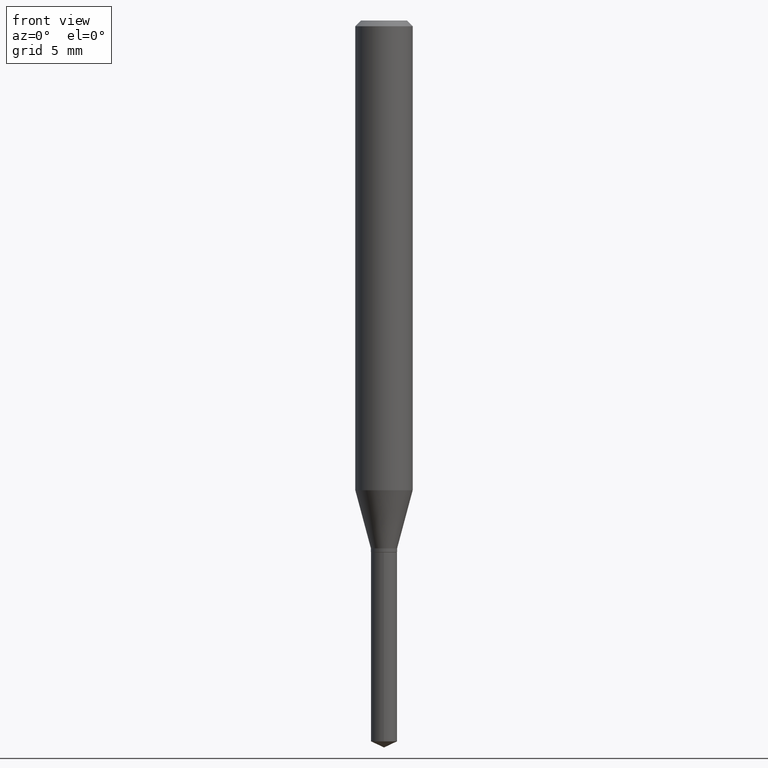
[diagram: clean part render]
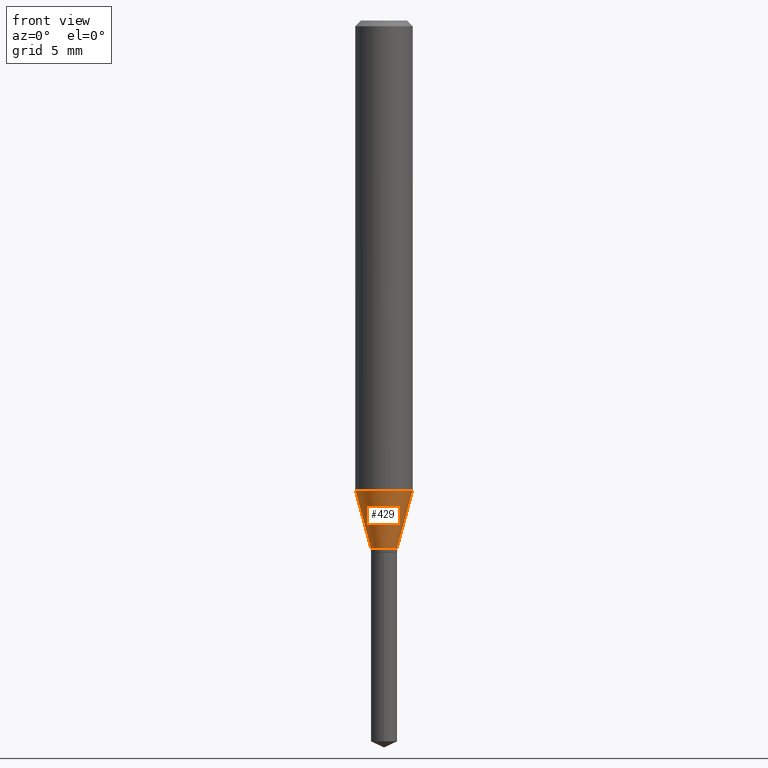
[diagram: same view with one face highlighted and labeled with its STEP entity id]
A machine part, front view. The second image highlights one B-rep face of the part: STEP entity #429.
In plain terms, the highlighted conical surface has half-angle 15 deg.
Its self-contained STEP definition (entity closure, byte-faithful):
#10 = CARTESIAN_POINT ( 'NONE',  ( -0.02695000000000000173, -3.601654059231846417E-15, -1.086399999999999810 ) ) ;
#17 = EDGE_CURVE ( 'NONE', #186, #310, #37, .T. ) ;
#19 = CARTESIAN_POINT ( 'NONE',  ( -0.05905000000000011628, -2.955294458470109520E-15, -0.9666011690770388576 ) ) ;
#37 = CIRCLE ( 'NONE', #421, 0.02695000000000000173 ) ;
#41 = EDGE_LOOP ( 'NONE', ( #141, #459, #177, #231 ) ) ;
#53 = DIRECTION ( 'NONE',  ( -2.445468806185136597E-29, 3.491481338843145583E-15, 1.000000000000000000 ) ) ;
#63 = AXIS2_PLACEMENT_3D ( 'NONE', #411, #331, #481 ) ;
#81 = VERTEX_POINT ( 'NONE', #19 ) ;
#89 = VECTOR ( 'NONE', #184, 39.37007874015747433 ) ;
#92 = LINE ( 'NONE', #10, #89 ) ;
#131 = DIRECTION ( 'NONE',  ( -2.445468806185136597E-29, 3.491481338843145583E-15, 1.000000000000000000 ) ) ;
#134 = EDGE_CURVE ( 'NONE', #310, #241, #391, .T. ) ;
#141 = ORIENTED_EDGE ( 'NONE', *, *, #324, .F. ) ;
#168 = VECTOR ( 'NONE', #207, 39.37007874015747433 ) ;
#177 = ORIENTED_EDGE ( 'NONE', *, *, #134, .T. ) ;
#184 = DIRECTION ( 'NONE',  ( -0.2588190451025213501, 5.211531920934551042E-15, 0.9659258262890682012 ) ) ;
#186 = VERTEX_POINT ( 'NONE', #261 ) ;
#207 = DIRECTION ( 'NONE',  ( 0.2588190451025213501, 1.565188264969621968E-15, 0.9659258262890682012 ) ) ;
#210 = DIRECTION ( 'NONE',  ( 1.000000000000000000, -6.982962677686265133E-15, 0.000000000000000000 ) ) ;
#211 = CIRCLE ( 'NONE', #63, 0.05905000000000011628 ) ;
#231 = ORIENTED_EDGE ( 'NONE', *, *, #254, .F. ) ;
#241 = VERTEX_POINT ( 'NONE', #303 ) ;
#252 = CARTESIAN_POINT ( 'NONE',  ( 2.656757311039532110E-29, -3.793145326519192838E-15, -1.086399999999999810 ) ) ;
#254 = EDGE_CURVE ( 'NONE', #81, #241, #211, .T. ) ;
#261 = CARTESIAN_POINT ( 'NONE',  ( -0.02695000000000000173, -3.614921688319449844E-15, -1.086399999999999810 ) ) ;
#287 = CARTESIAN_POINT ( 'NONE',  ( 0.02695000000000000173, -3.981336170682838022E-15, -1.086399999999999810 ) ) ;
#288 = DIRECTION ( 'NONE',  ( 1.000000000000000000, -6.982962677686265133E-15, 0.000000000000000000 ) ) ;
#293 = CARTESIAN_POINT ( 'NONE',  ( 2.656757311039532110E-29, -3.793145326519192838E-15, -1.086399999999999810 ) ) ;
#303 = CARTESIAN_POINT ( 'NONE',  ( 0.05905000000000011628, -3.787213890053824327E-15, -0.9666011690770388576 ) ) ;
#310 = VERTEX_POINT ( 'NONE', #287 ) ;
#324 = EDGE_CURVE ( 'NONE', #186, #81, #92, .T. ) ;
#331 = DIRECTION ( 'NONE',  ( -2.445468806185136597E-29, 3.491481338843145583E-15, 1.000000000000000000 ) ) ;
#362 = CARTESIAN_POINT ( 'NONE',  ( 0.02695000000000000173, -3.981336170682838022E-15, -1.086399999999999810 ) ) ;
#391 = LINE ( 'NONE', #362, #168 ) ;
#409 = CONICAL_SURFACE ( 'NONE', #472, 0.02695000000000000173, 0.2617993877991500740 ) ;
#411 = CARTESIAN_POINT ( 'NONE',  ( 2.363793006999983413E-29, -3.374869943936449013E-15, -0.9666011690770388576 ) ) ;
#421 = AXIS2_PLACEMENT_3D ( 'NONE', #293, #131, #288 ) ;
#429 = ADVANCED_FACE ( 'NONE', ( #471 ), #409, .T. ) ;
#459 = ORIENTED_EDGE ( 'NONE', *, *, #17, .T. ) ;
#471 = FACE_OUTER_BOUND ( 'NONE', #41, .T. ) ;
#472 = AXIS2_PLACEMENT_3D ( 'NONE', #252, #53, #210 ) ;
#481 = DIRECTION ( 'NONE',  ( 1.000000000000000000, -6.982962677686266711E-15, 0.000000000000000000 ) ) ;